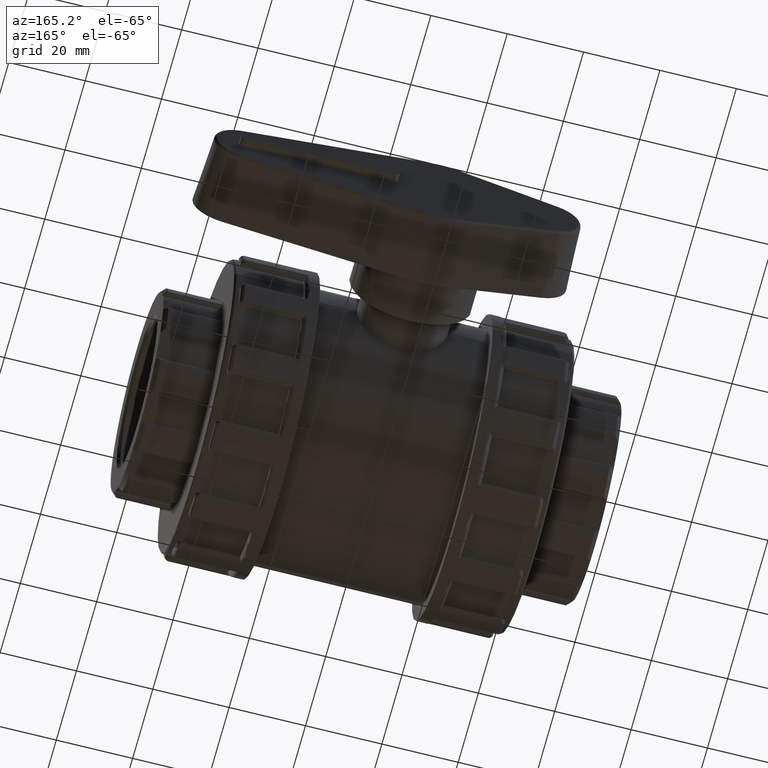
[diagram: clean part render]
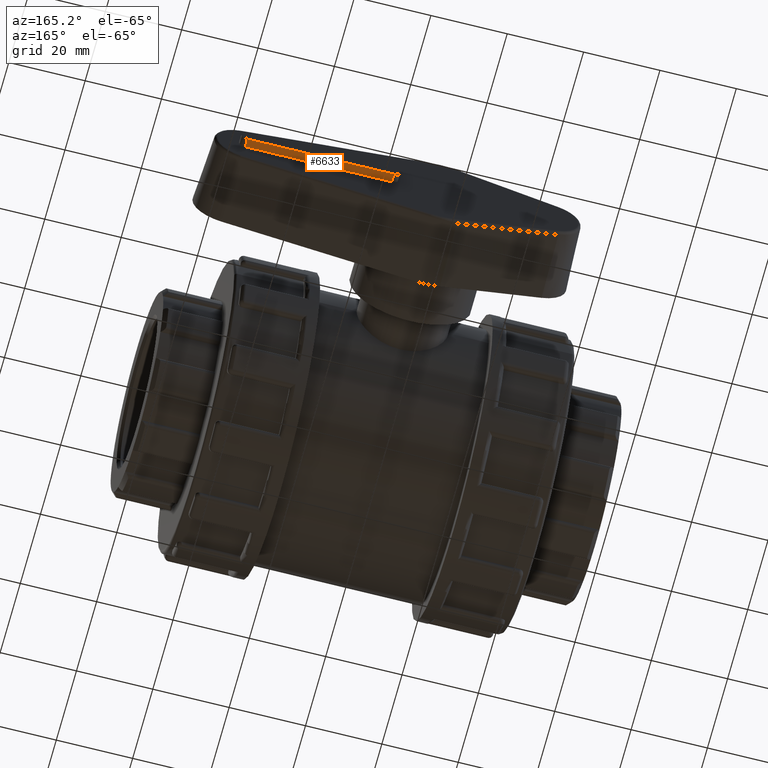
[diagram: same view with one face highlighted and labeled with its STEP entity id]
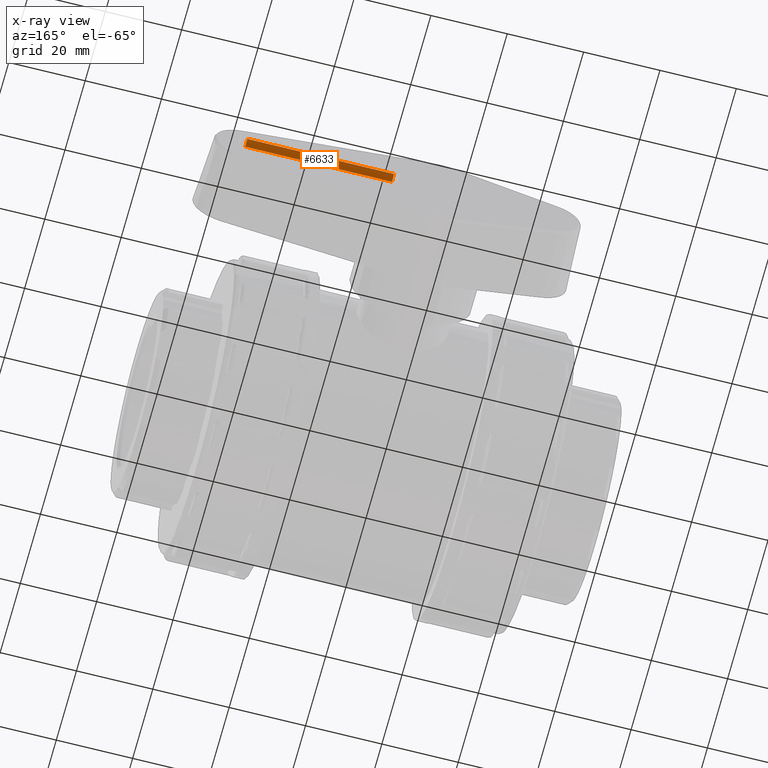
[diagram: x-ray of the same camera — body ghosted, the highlighted face saturated]
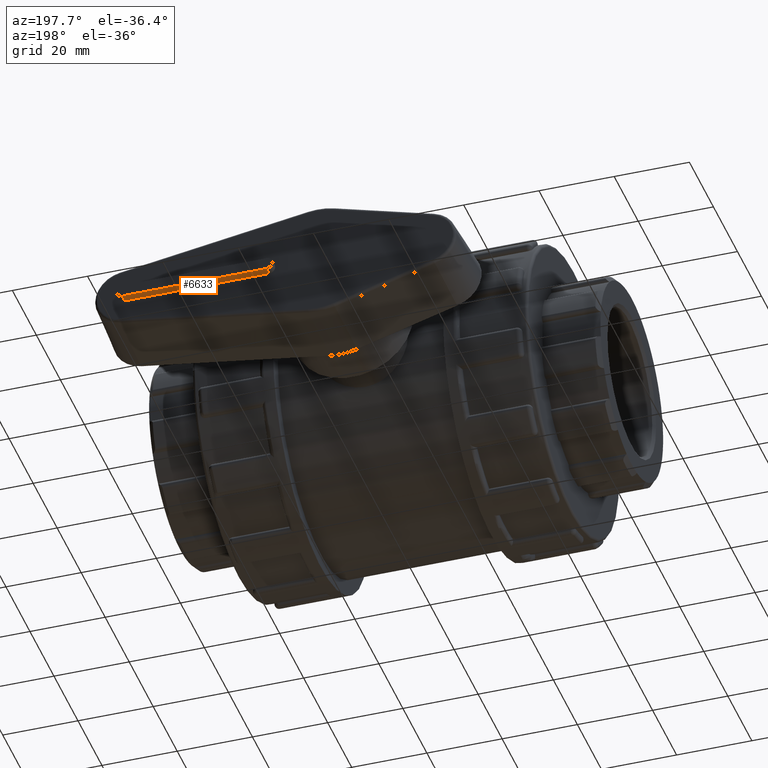
[diagram: same view with one face highlighted and labeled with its STEP entity id]
A machine part, auxiliary view. The second image highlights one B-rep face of the part: STEP entity #6633.
The next image is the same camera in x-ray: the body ghosted, the highlighted face saturated — about 0% of this face is hidden behind the body in this view.
A second angle (auxiliary view) of the same face is appended — the face is thin or edge-on in the first view.
In plain terms, the highlighted planar face has unit normal (-0, 0, -1).
Its self-contained STEP definition (entity closure, byte-faithful):
#230=PLANE('',#7091);
#436=FACE_OUTER_BOUND('',#871,.T.);
#871=EDGE_LOOP('',(#4393,#4394,#4395,#4396));
#1330=LINE('',#10385,#1726);
#1331=LINE('',#10388,#1727);
#1335=LINE('',#10399,#1731);
#1336=LINE('',#10401,#1732);
#1726=VECTOR('',#8090,38.4);
#1727=VECTOR('',#8093,2.22);
#1731=VECTOR('',#8105,2.22);
#1732=VECTOR('',#8108,38.4);
#2646=VERTEX_POINT('',#10378);
#2649=VERTEX_POINT('',#10383);
#2650=VERTEX_POINT('',#10387);
#2653=VERTEX_POINT('',#10397);
#3305=EDGE_CURVE('',#2649,#2646,#1330,.T.);
#3306=EDGE_CURVE('',#2646,#2650,#1331,.T.);
#3312=EDGE_CURVE('',#2649,#2653,#1335,.T.);
#3313=EDGE_CURVE('',#2650,#2653,#1336,.T.);
#4393=ORIENTED_EDGE('',*,*,#3305,.F.);
#4394=ORIENTED_EDGE('',*,*,#3312,.T.);
#4395=ORIENTED_EDGE('',*,*,#3313,.F.);
#4396=ORIENTED_EDGE('',*,*,#3306,.F.);
#6633=ADVANCED_FACE('',(#436),#230,.T.);
#7091=AXIS2_PLACEMENT_3D('',#10400,#8106,#8107);
#8090=DIRECTION('',(1.,3.33066907387547E-16,-3.61400724161835E-17));
#8093=DIRECTION('',(0.,1.,0.));
#8105=DIRECTION('',(0.,1.,0.));
#8106=DIRECTION('center_axis',(-3.61400724161835E-17,0.,-1.));
#8107=DIRECTION('ref_axis',(-1.,0.,4.44089209850063E-17));
#8108=DIRECTION('',(-1.,-3.33066907387547E-16,3.61400724161835E-17));
#10378=CARTESIAN_POINT('',(51.2,74.,-1.6));
#10383=CARTESIAN_POINT('',(12.8,74.,-1.6));
#10385=CARTESIAN_POINT('',(25.6,74.,-1.6));
#10387=CARTESIAN_POINT('',(51.2,76.22,-1.6));
#10388=CARTESIAN_POINT('',(51.2,74.,-1.6));
#10397=CARTESIAN_POINT('',(12.8,76.22,-1.6));
#10399=CARTESIAN_POINT('',(12.8,74.,-1.6));
#10400=CARTESIAN_POINT('Origin',(51.2,74.,-1.6));
#10401=CARTESIAN_POINT('',(51.2,76.22,-1.6));